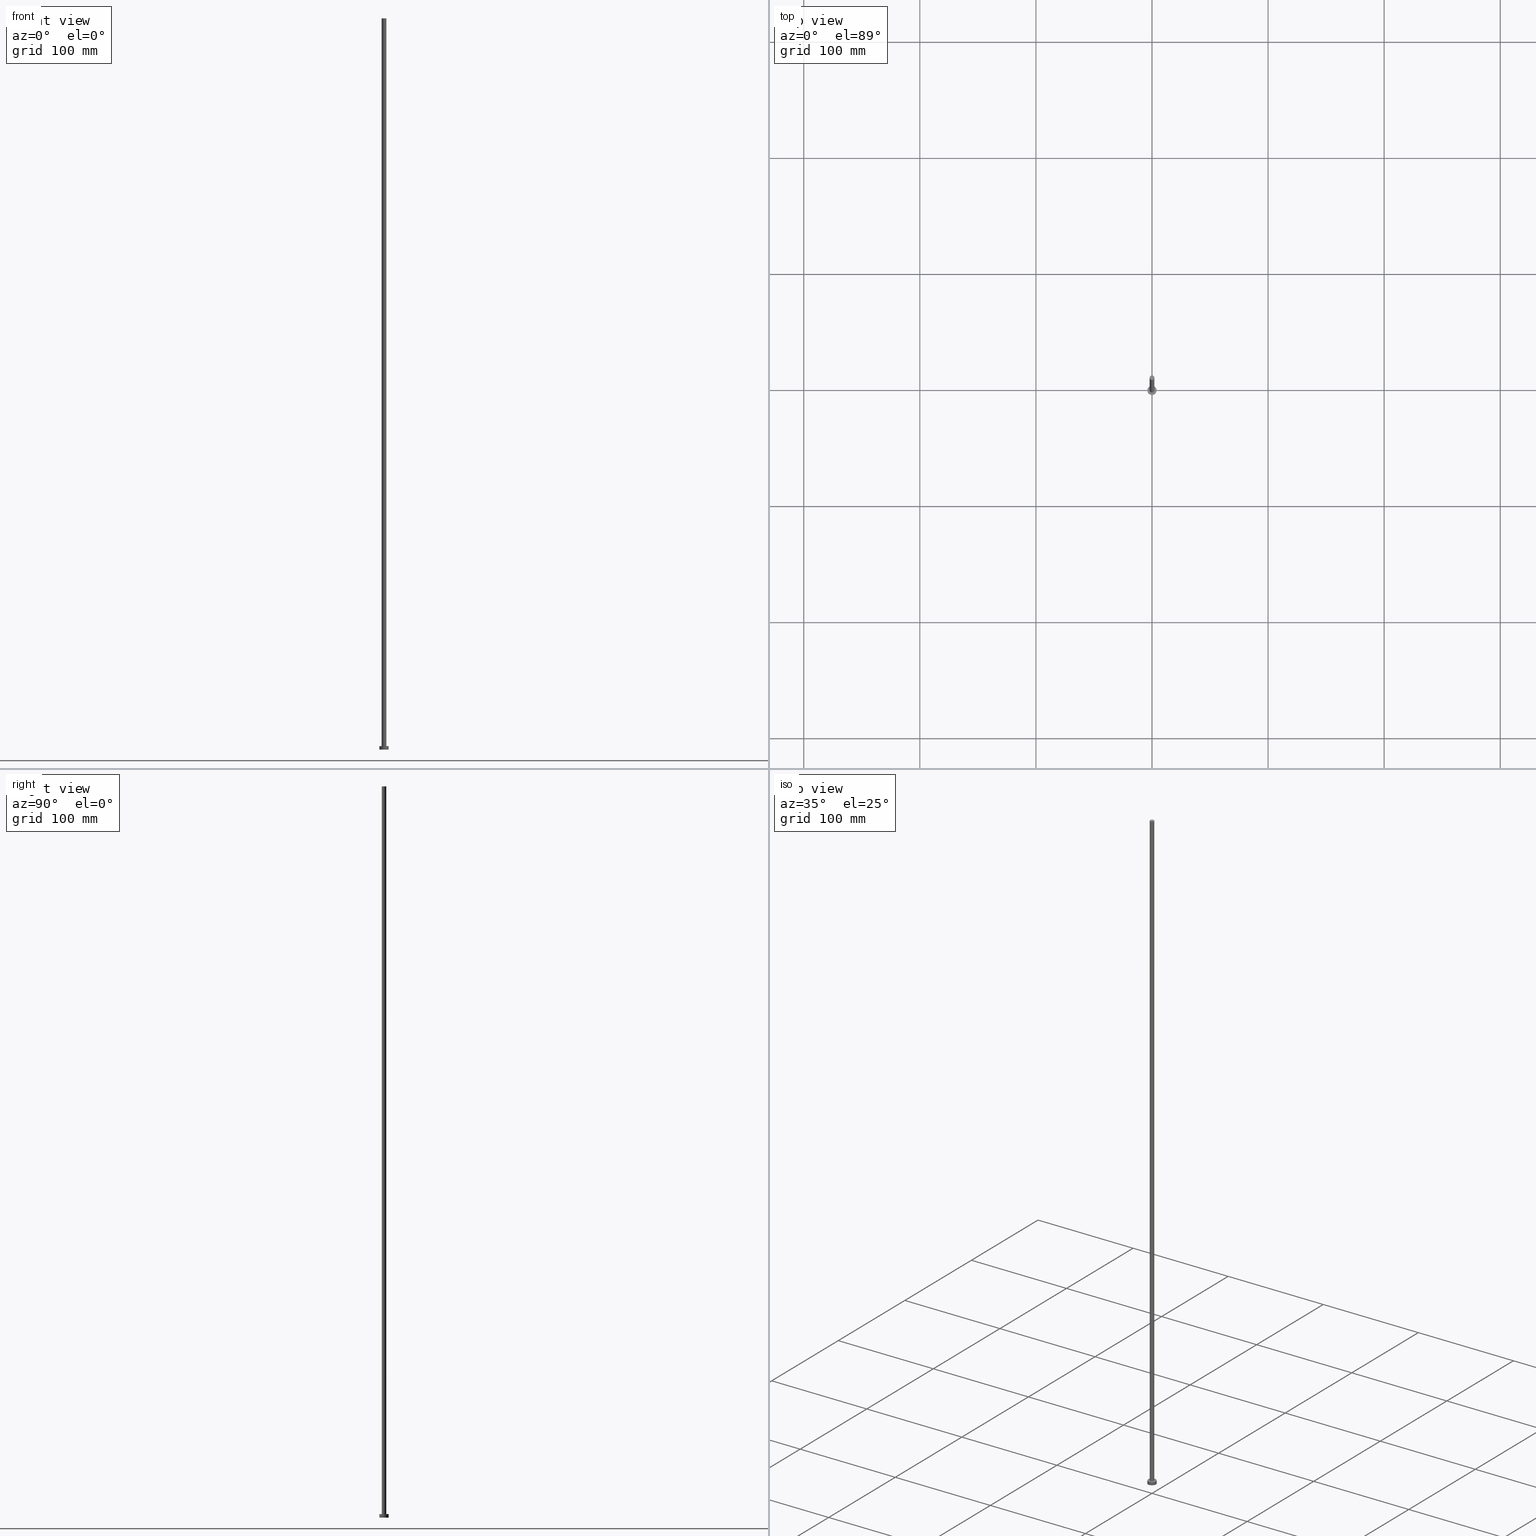
[diagram: canonical four-view strip — front | top / right | iso, engineering-drawing reading convention]
A machine part, canonical four-view strip (front | top / right | iso — engineering-drawing reading convention). The complete STEP part file that produces these views, byte-faithful:
ISO-10303-21;
HEADER;
FILE_DESCRIPTION (( 'STEP AP203' ),
    '1' );
FILE_NAME ('ee25.STEP',
    '2023-02-13T15:06:51',
    ( '' ),
    ( '' ),
    'SwSTEP 2.0',
    'SolidWorks 2019',
    '' );
FILE_SCHEMA (( 'CONFIG_CONTROL_DESIGN' ));
ENDSEC;

DATA;
#1 = ORIENTED_EDGE ( 'NONE', *, *, #71, .F. ) ;
#2 = CC_DESIGN_APPROVAL ( #156, ( #75 ) ) ;
#3 = EDGE_CURVE ( 'NONE', #213, #187, #106, .T. ) ;
#4 = COORDINATED_UNIVERSAL_TIME_OFFSET ( 1, 0, .AHEAD. ) ;
#5 = DIRECTION ( 'NONE',  ( -0.000000000000000000, -0.000000000000000000, -1.000000000000000000 ) ) ;
#6 = ORIENTED_EDGE ( 'NONE', *, *, #29, .T. ) ;
#7 = AXIS2_PLACEMENT_3D ( 'NONE', #202, #129, #238 ) ;
#8 = APPROVAL_DATE_TIME ( #48, #156 ) ;
#9 = CARTESIAN_POINT ( 'NONE',  ( 0.000000000000000000, 0.000000000000000000, 3.000000000000000000 ) ) ;
#10 = DIRECTION ( 'NONE',  ( -1.000000000000000000, 0.000000000000000000, 0.000000000000000000 ) ) ;
#11 = APPROVAL_STATUS ( 'not_yet_approved' ) ;
#12 = ORIENTED_EDGE ( 'NONE', *, *, #161, .F. ) ;
#13 = CARTESIAN_POINT ( 'NONE',  ( -4.000000000000000000, 0.000000000000000000, 3.000000000000000000 ) ) ;
#14 = DIRECTION ( 'NONE',  ( -0.000000000000000000, -0.000000000000000000, -1.000000000000000000 ) ) ;
#15 = DIRECTION ( 'NONE',  ( -1.000000000000000000, 0.000000000000000000, 0.000000000000000000 ) ) ;
#16 = CC_DESIGN_PERSON_AND_ORGANIZATION_ASSIGNMENT ( #242, #244, ( #130 ) ) ;
#17 = CARTESIAN_POINT ( 'NONE',  ( 0.000000000000000000, 0.000000000000000000, 3.000000000000000000 ) ) ;
#18 = FACE_OUTER_BOUND ( 'NONE', #199, .T. ) ;
#19 = DIRECTION ( 'NONE',  ( 1.000000000000000000, 0.000000000000000000, 0.000000000000000000 ) ) ;
#20 = PRODUCT_RELATED_PRODUCT_CATEGORY ( 'detail', '', ( #219 ) ) ;
#21 = FACE_OUTER_BOUND ( 'NONE', #143, .T. ) ;
#22 = CYLINDRICAL_SURFACE ( 'NONE', #64, 2.000000000000000000 ) ;
#23 = AXIS2_PLACEMENT_3D ( 'NONE', #17, #222, #231 ) ;
#24 = CIRCLE ( 'NONE', #167, 2.000000000000000000 ) ;
#25 = APPROVAL_PERSON_ORGANIZATION ( #224, #33, #38 ) ;
#26 = APPLICATION_CONTEXT ( 'configuration controlled 3d designs of mechanical parts and assemblies' ) ;
#27 = ORIENTED_EDGE ( 'NONE', *, *, #116, .F. ) ;
#28 = DIRECTION ( 'NONE',  ( 1.000000000000000000, 0.000000000000000000, -0.000000000000000000 ) ) ;
#29 = EDGE_CURVE ( 'NONE', #218, #30, #176, .T. ) ;
#30 = VERTEX_POINT ( 'NONE', #119 ) ;
#31 = APPLICATION_CONTEXT ( 'configuration controlled 3d designs of mechanical parts and assemblies' ) ;
#32 = AXIS2_PLACEMENT_3D ( 'NONE', #105, #160, #28 ) ;
#33 = APPROVAL ( #11, 'NEUR�EN�' ) ;
#34 = AXIS2_PLACEMENT_3D ( 'NONE', #98, #221, #19 ) ;
#35 = DATE_TIME_ROLE ( 'classification_date' ) ;
#36 = DIRECTION ( 'NONE',  ( 1.000000000000000000, 0.000000000000000000, 0.000000000000000000 ) ) ;
#37 = VERTEX_POINT ( 'NONE', #101 ) ;
#38 = APPROVAL_ROLE ( '' ) ;
#39 = CIRCLE ( 'NONE', #139, 4.000000000000000000 ) ;
#40 = ADVANCED_FACE ( 'NONE', ( #195 ), #180, .T. ) ;
#41 = FACE_BOUND ( 'NONE', #190, .T. ) ;
#42 = LOCAL_TIME ( 16, 6, 51.00000000000000000, #4 ) ;
#43 = CYLINDRICAL_SURFACE ( 'NONE', #162, 4.000000000000000000 ) ;
#44 = FACE_OUTER_BOUND ( 'NONE', #137, .T. ) ;
#45 = ORIENTED_EDGE ( 'NONE', *, *, #63, .T. ) ;
#46 = CARTESIAN_POINT ( 'NONE',  ( 2.000000000000000000, 2.449293598294706414E-16, 3.000000000000000000 ) ) ;
#47 = CC_DESIGN_SECURITY_CLASSIFICATION ( #207, ( #130 ) ) ;
#48 = DATE_AND_TIME ( #146, #42 ) ;
#49 = CARTESIAN_POINT ( 'NONE',  ( 0.000000000000000000, 0.000000000000000000, 3.000000000000000000 ) ) ;
#50 = PERSON_AND_ORGANIZATION ( #61, #184 ) ;
#51 = ORIENTED_EDGE ( 'NONE', *, *, #108, .T. ) ;
#52 = COORDINATED_UNIVERSAL_TIME_OFFSET ( 1, 0, .AHEAD. ) ;
#53 = ADVANCED_FACE ( 'NONE', ( #44 ), #22, .T. ) ;
#54 = CARTESIAN_POINT ( 'NONE',  ( 0.000000000000000000, 0.000000000000000000, 630.0000000000000000 ) ) ;
#55 = PERSON_AND_ORGANIZATION ( #61, #184 ) ;
#56 = DIRECTION ( 'NONE',  ( 0.000000000000000000, 0.000000000000000000, 1.000000000000000000 ) ) ;
#57 = VECTOR ( 'NONE', #217, 1000.000000000000000 ) ;
#58 = LOCAL_TIME ( 16, 6, 51.00000000000000000, #67 ) ;
#59 = CARTESIAN_POINT ( 'NONE',  ( -2.000000000000000000, 0.000000000000000000, 3.000000000000000000 ) ) ;
#60 = CARTESIAN_POINT ( 'NONE',  ( 0.000000000000000000, 0.000000000000000000, 3.000000000000000000 ) ) ;
#61 = PERSON ( 'NEUR�EN�', 'NEUR�EN�', 'NEUR�EN�', ('NEUR�EN�'), ('NEUR�EN�'), ('NEUR�EN�') ) ;
#62 = DIRECTION ( 'NONE',  ( 0.000000000000000000, 0.000000000000000000, 1.000000000000000000 ) ) ;
#63 = EDGE_CURVE ( 'NONE', #37, #247, #39, .T. ) ;
#64 = AXIS2_PLACEMENT_3D ( 'NONE', #154, #5, #10 ) ;
#65 = APPROVAL_PERSON_ORGANIZATION ( #50, #183, #157 ) ;
#66 = AXIS2_PLACEMENT_3D ( 'NONE', #54, #135, #198 ) ;
#67 = COORDINATED_UNIVERSAL_TIME_OFFSET ( 1, 0, .AHEAD. ) ;
#68 = PERSON_AND_ORGANIZATION ( #61, #184 ) ;
#69 = ORIENTED_EDGE ( 'NONE', *, *, #112, .F. ) ;
#70 = PERSON_AND_ORGANIZATION ( #61, #184 ) ;
#71 = EDGE_CURVE ( 'NONE', #168, #237, #205, .T. ) ;
#72 = APPROVAL_STATUS ( 'not_yet_approved' ) ;
#73 = CARTESIAN_POINT ( 'NONE',  ( 0.000000000000000000, 0.000000000000000000, 0.000000000000000000 ) ) ;
#74 = ORIENTED_EDGE ( 'NONE', *, *, #131, .F. ) ;
#75 = PRODUCT_DEFINITION ( 'NEZN�M�', '', #130, #194 ) ;
#76 = DIRECTION ( 'NONE',  ( -0.000000000000000000, -0.000000000000000000, -1.000000000000000000 ) ) ;
#77 = CIRCLE ( 'NONE', #7, 4.000000000000000000 ) ;
#78 = CARTESIAN_POINT ( 'NONE',  ( -2.000000000000000000, 0.000000000000000000, 630.0000000000000000 ) ) ;
#79 = PLANE ( 'NONE',  #240 ) ;
#80 = DIRECTION ( 'NONE',  ( 0.000000000000000000, 0.000000000000000000, 1.000000000000000000 ) ) ;
#81 = ORIENTED_EDGE ( 'NONE', *, *, #169, .F. ) ;
#82 = CARTESIAN_POINT ( 'NONE',  ( -4.000000000000000000, 0.000000000000000000, 0.000000000000000000 ) ) ;
#83 = ADVANCED_FACE ( 'NONE', ( #21 ), #92, .T. ) ;
#84 = AXIS2_PLACEMENT_3D ( 'NONE', #158, #56, #140 ) ;
#85 = DATE_AND_TIME ( #186, #96 ) ;
#86 = AXIS2_PLACEMENT_3D ( 'NONE', #49, #206, #36 ) ;
#87 = ORIENTED_EDGE ( 'NONE', *, *, #112, .T. ) ;
#88 = APPLICATION_PROTOCOL_DEFINITION ( 'international standard', 'config_control_design', 1994, #26 ) ;
#89 = PERSON_AND_ORGANIZATION_ROLE ( 'design_owner' ) ;
#90 = EDGE_CURVE ( 'NONE', #247, #37, #214, .T. ) ;
#91 = EDGE_LOOP ( 'NONE', ( #110, #182 ) ) ;
#92 = CYLINDRICAL_SURFACE ( 'NONE', #23, 4.000000000000000000 ) ;
#93 = DIRECTION ( 'NONE',  ( -1.000000000000000000, 0.000000000000000000, 0.000000000000000000 ) ) ;
#94 = DIRECTION ( 'NONE',  ( 1.000000000000000000, 0.000000000000000000, 0.000000000000000000 ) ) ;
#95 = AXIS2_PLACEMENT_3D ( 'NONE', #73, #152, #191 ) ;
#96 = LOCAL_TIME ( 16, 6, 51.00000000000000000, #170 ) ;
#97 = DIRECTION ( 'NONE',  ( -0.000000000000000000, -0.000000000000000000, -1.000000000000000000 ) ) ;
#98 = CARTESIAN_POINT ( 'NONE',  ( 0.000000000000000000, 0.000000000000000000, 0.000000000000000000 ) ) ;
#99 = ADVANCED_FACE ( 'NONE', ( #18 ), #43, .T. ) ;
#100 = FACE_OUTER_BOUND ( 'NONE', #91, .T. ) ;
#101 = CARTESIAN_POINT ( 'NONE',  ( -4.000000000000000000, 0.000000000000000000, 3.000000000000000000 ) ) ;
#102 = DIRECTION ( 'NONE',  ( 1.000000000000000000, 0.000000000000000000, 0.000000000000000000 ) ) ;
#103 = ORIENTED_EDGE ( 'NONE', *, *, #131, .T. ) ;
#104 = EDGE_LOOP ( 'NONE', ( #45, #159 ) ) ;
#105 = CARTESIAN_POINT ( 'NONE',  ( 0.000000000000000000, 0.000000000000000000, 3.000000000000000000 ) ) ;
#106 = CIRCLE ( 'NONE', #86, 2.000000000000000000 ) ;
#107 = ORIENTED_EDGE ( 'NONE', *, *, #236, .T. ) ;
#108 = EDGE_CURVE ( 'NONE', #168, #187, #121, .T. ) ;
#109 = CARTESIAN_POINT ( 'NONE',  ( 2.000000000000000000, 2.449293598294706414E-16, 630.0000000000000000 ) ) ;
#110 = ORIENTED_EDGE ( 'NONE', *, *, #71, .T. ) ;
#111 = ADVANCED_BREP_SHAPE_REPRESENTATION ( 'ee25', ( #171, #95 ), #113 ) ;
#112 = EDGE_CURVE ( 'NONE', #247, #30, #178, .T. ) ;
#113 =( GEOMETRIC_REPRESENTATION_CONTEXT ( 3 ) GLOBAL_UNCERTAINTY_ASSIGNED_CONTEXT ( ( #210 ) ) GLOBAL_UNIT_ASSIGNED_CONTEXT ( ( #253, #145, #223 ) ) REPRESENTATION_CONTEXT ( 'NONE', 'WORKASPACE' ) );
#114 = DATE_AND_TIME ( #212, #255 ) ;
#115 = PERSON_AND_ORGANIZATION_ROLE ( 'creator' ) ;
#116 = EDGE_CURVE ( 'NONE', #187, #213, #142, .T. ) ;
#117 = ORIENTED_EDGE ( 'NONE', *, *, #3, .F. ) ;
#118 = DIRECTION ( 'NONE',  ( 0.000000000000000000, 0.000000000000000000, 1.000000000000000000 ) ) ;
#119 = CARTESIAN_POINT ( 'NONE',  ( 4.000000000000000000, 4.898587196589412829E-16, 0.000000000000000000 ) ) ;
#120 = DIRECTION ( 'NONE',  ( -0.000000000000000000, -0.000000000000000000, -1.000000000000000000 ) ) ;
#121 = LINE ( 'NONE', #78, #201 ) ;
#122 = APPROVAL_PERSON_ORGANIZATION ( #136, #156, #188 ) ;
#123 = APPROVAL_DATE_TIME ( #172, #183 ) ;
#124 = ORIENTED_EDGE ( 'NONE', *, *, #169, .T. ) ;
#125 = CARTESIAN_POINT ( 'NONE',  ( 2.000000000000000000, 2.449293598294706414E-16, 630.0000000000000000 ) ) ;
#126 = ADVANCED_FACE ( 'NONE', ( #228 ), #79, .F. ) ;
#127 = ORIENTED_EDGE ( 'NONE', *, *, #29, .F. ) ;
#128 = ADVANCED_FACE ( 'NONE', ( #100 ), #251, .T. ) ;
#129 = DIRECTION ( 'NONE',  ( 0.000000000000000000, 0.000000000000000000, 1.000000000000000000 ) ) ;
#130 = PRODUCT_DEFINITION_FORMATION_WITH_SPECIFIED_SOURCE ( 'LIBOVOLN�', '', #219, .NOT_KNOWN. ) ;
#131 = EDGE_CURVE ( 'NONE', #37, #218, #234, .T. ) ;
#132 = PERSON_AND_ORGANIZATION_ROLE ( 'classification_officer' ) ;
#133 = SECURITY_CLASSIFICATION_LEVEL ( 'unclassified' ) ;
#134 = DIRECTION ( 'NONE',  ( 1.000000000000000000, 0.000000000000000000, 0.000000000000000000 ) ) ;
#135 = DIRECTION ( 'NONE',  ( 0.000000000000000000, 0.000000000000000000, 1.000000000000000000 ) ) ;
#136 = PERSON_AND_ORGANIZATION ( #61, #184 ) ;
#137 = EDGE_LOOP ( 'NONE', ( #81, #1, #51, #150 ) ) ;
#138 = CC_DESIGN_PERSON_AND_ORGANIZATION_ASSIGNMENT ( #203, #132, ( #207 ) ) ;
#139 = AXIS2_PLACEMENT_3D ( 'NONE', #9, #227, #134 ) ;
#140 = DIRECTION ( 'NONE',  ( 1.000000000000000000, 0.000000000000000000, -0.000000000000000000 ) ) ;
#141 = DIRECTION ( 'NONE',  ( 1.000000000000000000, 0.000000000000000000, -0.000000000000000000 ) ) ;
#142 = CIRCLE ( 'NONE', #155, 2.000000000000000000 ) ;
#143 = EDGE_LOOP ( 'NONE', ( #225, #87, #107, #74 ) ) ;
#144 = CARTESIAN_POINT ( 'NONE',  ( -2.000000000000000000, 0.000000000000000000, 630.0000000000000000 ) ) ;
#145 =( NAMED_UNIT ( * ) PLANE_ANGLE_UNIT ( ) SI_UNIT ( $, .RADIAN. ) );
#146 = CALENDAR_DATE ( 2023, 13, 2 ) ;
#147 = PERSON_AND_ORGANIZATION_ROLE ( 'design_supplier' ) ;
#148 = ORIENTED_EDGE ( 'NONE', *, *, #108, .F. ) ;
#149 = MECHANICAL_CONTEXT ( 'NONE', #31, 'mechanical' ) ;
#150 = ORIENTED_EDGE ( 'NONE', *, *, #116, .T. ) ;
#151 = CLOSED_SHELL ( 'NONE', ( #40, #83, #99, #209, #126, #53, #128 ) ) ;
#152 = DIRECTION ( 'NONE',  ( 0.000000000000000000, 0.000000000000000000, 1.000000000000000000 ) ) ;
#153 = DIRECTION ( 'NONE',  ( 1.000000000000000000, 0.000000000000000000, 0.000000000000000000 ) ) ;
#154 = CARTESIAN_POINT ( 'NONE',  ( 0.000000000000000000, 0.000000000000000000, 630.0000000000000000 ) ) ;
#155 = AXIS2_PLACEMENT_3D ( 'NONE', #250, #80, #94 ) ;
#156 = APPROVAL ( #72, 'NEUR�EN�' ) ;
#157 = APPROVAL_ROLE ( '' ) ;
#158 = CARTESIAN_POINT ( 'NONE',  ( 0.000000000000000000, 0.000000000000000000, 630.0000000000000000 ) ) ;
#159 = ORIENTED_EDGE ( 'NONE', *, *, #90, .T. ) ;
#160 = DIRECTION ( 'NONE',  ( 0.000000000000000000, 0.000000000000000000, 1.000000000000000000 ) ) ;
#161 = EDGE_CURVE ( 'NONE', #237, #168, #24, .T. ) ;
#162 = AXIS2_PLACEMENT_3D ( 'NONE', #248, #120, #15 ) ;
#163 = EDGE_LOOP ( 'NONE', ( #127, #173 ) ) ;
#164 = APPLICATION_PROTOCOL_DEFINITION ( 'international standard', 'config_control_design', 1994, #31 ) ;
#165 = CC_DESIGN_DATE_AND_TIME_ASSIGNMENT ( #114, #192, ( #75 ) ) ;
#166 = AXIS2_PLACEMENT_3D ( 'NONE', #60, #118, #102 ) ;
#167 = AXIS2_PLACEMENT_3D ( 'NONE', #174, #62, #153 ) ;
#168 = VERTEX_POINT ( 'NONE', #144 ) ;
#169 = EDGE_CURVE ( 'NONE', #237, #213, #229, .T. ) ;
#170 = COORDINATED_UNIVERSAL_TIME_OFFSET ( 1, 0, .AHEAD. ) ;
#171 = MANIFOLD_SOLID_BREP ( 'P�idat vysunut�m3', #151 ) ;
#172 = DATE_AND_TIME ( #230, #189 ) ;
#173 = ORIENTED_EDGE ( 'NONE', *, *, #236, .F. ) ;
#174 = CARTESIAN_POINT ( 'NONE',  ( 0.000000000000000000, 0.000000000000000000, 630.0000000000000000 ) ) ;
#175 = CC_DESIGN_PERSON_AND_ORGANIZATION_ASSIGNMENT ( #68, #147, ( #130 ) ) ;
#176 = CIRCLE ( 'NONE', #34, 4.000000000000000000 ) ;
#177 = CC_DESIGN_APPROVAL ( #183, ( #207 ) ) ;
#178 = LINE ( 'NONE', #197, #254 ) ;
#179 = DIRECTION ( 'NONE',  ( -0.000000000000000000, -0.000000000000000000, -1.000000000000000000 ) ) ;
#180 = CYLINDRICAL_SURFACE ( 'NONE', #252, 2.000000000000000000 ) ;
#181 = PLANE ( 'NONE',  #32 ) ;
#182 = ORIENTED_EDGE ( 'NONE', *, *, #161, .T. ) ;
#183 = APPROVAL ( #208, 'NEUR�EN�' ) ;
#184 = ORGANIZATION ( 'NEUR�EN�', 'NEUR�EN�', '' ) ;
#185 = CARTESIAN_POINT ( 'NONE',  ( 4.000000000000000000, 4.898587196589412829E-16, 3.000000000000000000 ) ) ;
#186 = CALENDAR_DATE ( 2023, 13, 2 ) ;
#187 = VERTEX_POINT ( 'NONE', #59 ) ;
#188 = APPROVAL_ROLE ( '' ) ;
#189 = LOCAL_TIME ( 16, 6, 51.00000000000000000, #196 ) ;
#190 = EDGE_LOOP ( 'NONE', ( #27, #117 ) ) ;
#191 = DIRECTION ( 'NONE',  ( 1.000000000000000000, 0.000000000000000000, 0.000000000000000000 ) ) ;
#192 = DATE_TIME_ROLE ( 'creation_date' ) ;
#193 = ORIENTED_EDGE ( 'NONE', *, *, #63, .F. ) ;
#194 = DESIGN_CONTEXT ( 'detailed design', #26, 'design' ) ;
#195 = FACE_OUTER_BOUND ( 'NONE', #211, .T. ) ;
#196 = COORDINATED_UNIVERSAL_TIME_OFFSET ( 1, 0, .AHEAD. ) ;
#197 = CARTESIAN_POINT ( 'NONE',  ( 4.000000000000000000, 4.898587196589412829E-16, 3.000000000000000000 ) ) ;
#198 = DIRECTION ( 'NONE',  ( 1.000000000000000000, 0.000000000000000000, 0.000000000000000000 ) ) ;
#199 = EDGE_LOOP ( 'NONE', ( #69, #193, #103, #6 ) ) ;
#200 = FACE_OUTER_BOUND ( 'NONE', #104, .T. ) ;
#201 = VECTOR ( 'NONE', #179, 1000.000000000000000 ) ;
#202 = CARTESIAN_POINT ( 'NONE',  ( 0.000000000000000000, 0.000000000000000000, 0.000000000000000000 ) ) ;
#203 = PERSON_AND_ORGANIZATION ( #61, #184 ) ;
#204 = CALENDAR_DATE ( 2023, 13, 2 ) ;
#205 = CIRCLE ( 'NONE', #66, 2.000000000000000000 ) ;
#206 = DIRECTION ( 'NONE',  ( 0.000000000000000000, 0.000000000000000000, 1.000000000000000000 ) ) ;
#207 = SECURITY_CLASSIFICATION ( '', '', #133 ) ;
#208 = APPROVAL_STATUS ( 'not_yet_approved' ) ;
#209 = ADVANCED_FACE ( 'NONE', ( #41, #200 ), #181, .T. ) ;
#210 = UNCERTAINTY_MEASURE_WITH_UNIT (LENGTH_MEASURE( 1.000000000000000082E-05 ), #253, 'distance_accuracy_value', 'NONE');
#211 = EDGE_LOOP ( 'NONE', ( #12, #124, #246, #148 ) ) ;
#212 = CALENDAR_DATE ( 2023, 13, 2 ) ;
#213 = VERTEX_POINT ( 'NONE', #46 ) ;
#214 = CIRCLE ( 'NONE', #166, 4.000000000000000000 ) ;
#215 = CC_DESIGN_PERSON_AND_ORGANIZATION_ASSIGNMENT ( #70, #115, ( #75 ) ) ;
#216 = SHAPE_DEFINITION_REPRESENTATION ( #239, #111 ) ;
#217 = DIRECTION ( 'NONE',  ( -0.000000000000000000, -0.000000000000000000, -1.000000000000000000 ) ) ;
#218 = VERTEX_POINT ( 'NONE', #82 ) ;
#219 = PRODUCT ( 'ee25', 'ee25', '', ( #149 ) ) ;
#220 = CC_DESIGN_DATE_AND_TIME_ASSIGNMENT ( #245, #35, ( #207 ) ) ;
#221 = DIRECTION ( 'NONE',  ( 0.000000000000000000, 0.000000000000000000, 1.000000000000000000 ) ) ;
#222 = DIRECTION ( 'NONE',  ( -0.000000000000000000, -0.000000000000000000, -1.000000000000000000 ) ) ;
#223 =( NAMED_UNIT ( * ) SI_UNIT ( $, .STERADIAN. ) SOLID_ANGLE_UNIT ( ) );
#224 = PERSON_AND_ORGANIZATION ( #61, #184 ) ;
#225 = ORIENTED_EDGE ( 'NONE', *, *, #90, .F. ) ;
#226 = APPROVAL_DATE_TIME ( #85, #33 ) ;
#227 = DIRECTION ( 'NONE',  ( 0.000000000000000000, 0.000000000000000000, 1.000000000000000000 ) ) ;
#228 = FACE_OUTER_BOUND ( 'NONE', #163, .T. ) ;
#229 = LINE ( 'NONE', #125, #57 ) ;
#230 = CALENDAR_DATE ( 2023, 13, 2 ) ;
#231 = DIRECTION ( 'NONE',  ( -1.000000000000000000, 0.000000000000000000, 0.000000000000000000 ) ) ;
#232 = CC_DESIGN_PERSON_AND_ORGANIZATION_ASSIGNMENT ( #55, #89, ( #219 ) ) ;
#233 = DIRECTION ( 'NONE',  ( 0.000000000000000000, 0.000000000000000000, 1.000000000000000000 ) ) ;
#234 = LINE ( 'NONE', #13, #243 ) ;
#235 = CARTESIAN_POINT ( 'NONE',  ( 0.000000000000000000, 0.000000000000000000, 630.0000000000000000 ) ) ;
#236 = EDGE_CURVE ( 'NONE', #30, #218, #77, .T. ) ;
#237 = VERTEX_POINT ( 'NONE', #109 ) ;
#238 = DIRECTION ( 'NONE',  ( 1.000000000000000000, 0.000000000000000000, 0.000000000000000000 ) ) ;
#239 = PRODUCT_DEFINITION_SHAPE ( 'NONE', 'NONE',  #75 ) ;
#240 = AXIS2_PLACEMENT_3D ( 'NONE', #249, #233, #141 ) ;
#241 = CC_DESIGN_APPROVAL ( #33, ( #130 ) ) ;
#242 = PERSON_AND_ORGANIZATION ( #61, #184 ) ;
#243 = VECTOR ( 'NONE', #76, 1000.000000000000000 ) ;
#244 = PERSON_AND_ORGANIZATION_ROLE ( 'creator' ) ;
#245 = DATE_AND_TIME ( #204, #58 ) ;
#246 = ORIENTED_EDGE ( 'NONE', *, *, #3, .T. ) ;
#247 = VERTEX_POINT ( 'NONE', #185 ) ;
#248 = CARTESIAN_POINT ( 'NONE',  ( 0.000000000000000000, 0.000000000000000000, 3.000000000000000000 ) ) ;
#249 = CARTESIAN_POINT ( 'NONE',  ( 0.000000000000000000, 0.000000000000000000, 0.000000000000000000 ) ) ;
#250 = CARTESIAN_POINT ( 'NONE',  ( 0.000000000000000000, 0.000000000000000000, 3.000000000000000000 ) ) ;
#251 = PLANE ( 'NONE',  #84 ) ;
#252 = AXIS2_PLACEMENT_3D ( 'NONE', #235, #14, #93 ) ;
#253 =( LENGTH_UNIT ( ) NAMED_UNIT ( * ) SI_UNIT ( .MILLI., .METRE. ) );
#254 = VECTOR ( 'NONE', #97, 1000.000000000000000 ) ;
#255 = LOCAL_TIME ( 16, 6, 51.00000000000000000, #52 ) ;
ENDSEC;
END-ISO-10303-21;
